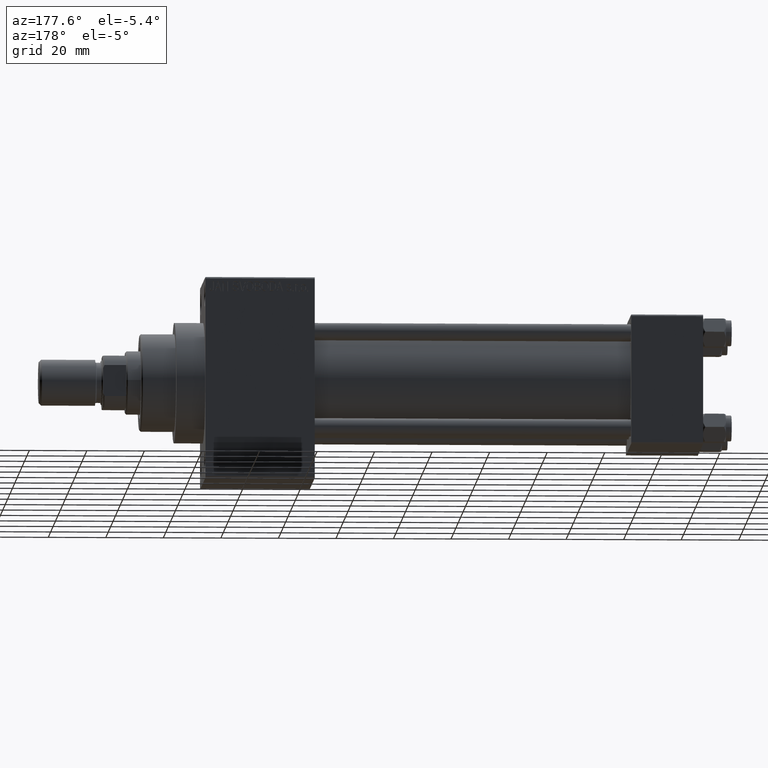
[diagram: clean part render]
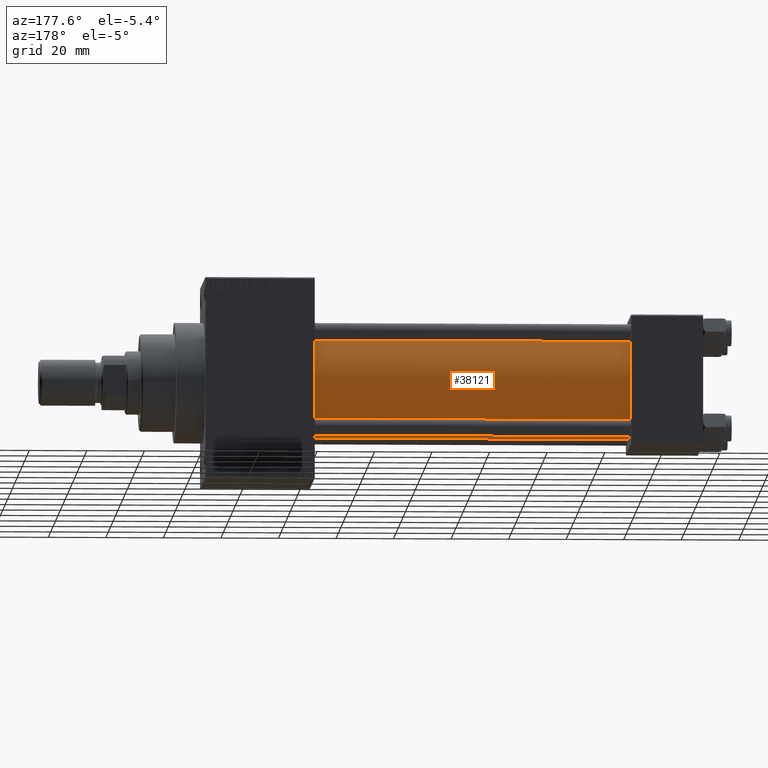
[diagram: same view with one face highlighted and labeled with its STEP entity id]
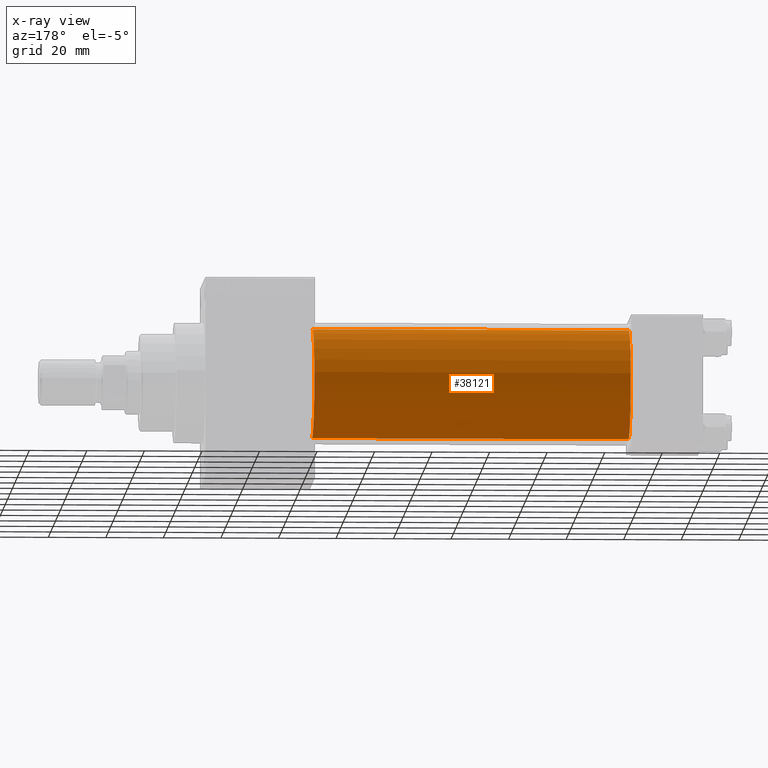
[diagram: x-ray of the same camera — body ghosted, the highlighted face saturated]
A machine part, auxiliary view. The second image highlights one B-rep face of the part: STEP entity #38121.
The next image is the same camera in x-ray: the body ghosted, the highlighted face saturated — about 0% of this face is hidden behind the body in this view.
In plain terms, the highlighted cylindrical surface (partial cylindrical patch) has radius 19 mm, axis along (-1, -0, -0).
Its self-contained STEP definition (entity closure, byte-faithful):
#3793 = CARTESIAN_POINT ( 'NONE',  ( 135.0000000000000000, -2.752562955852396712E-16, -19.00000000000000000 ) ) ;
#4230 = CIRCLE ( 'NONE', #9636, 19.00000000000000000 ) ;
#4643 = ORIENTED_EDGE ( 'NONE', *, *, #18242, .T. ) ;
#7622 = CIRCLE ( 'NONE', #34501, 19.00000000000000000 ) ;
#7911 = EDGE_CURVE ( 'NONE', #32241, #9795, #7622, .T. ) ;
#9193 = CARTESIAN_POINT ( 'NONE',  ( 135.0000000000000000, -2.602085213965210642E-15, 19.00000000000000000 ) ) ;
#9636 = AXIS2_PLACEMENT_3D ( 'NONE', #16887, #31548, #27936 ) ;
#9795 = VERTEX_POINT ( 'NONE', #9193 ) ;
#10458 = AXIS2_PLACEMENT_3D ( 'NONE', #14865, #36493, #44197 ) ;
#11735 = CARTESIAN_POINT ( 'NONE',  ( 135.0000000000000000, -2.602085213965210642E-15, 0.000000000000000000 ) ) ;
#12824 = EDGE_LOOP ( 'NONE', ( #28308, #32045, #4643, #15861 ) ) ;
#13184 = VECTOR ( 'NONE', #41785, 1000.000000000000000 ) ;
#14865 = CARTESIAN_POINT ( 'NONE',  ( 135.0000000000000000, -2.602085213965210642E-15, 0.000000000000000000 ) ) ;
#15861 = ORIENTED_EDGE ( 'NONE', *, *, #25751, .F. ) ;
#16887 = CARTESIAN_POINT ( 'NONE',  ( 24.99999999999999289, -2.602085213965210642E-15, 0.000000000000000000 ) ) ;
#17365 = CARTESIAN_POINT ( 'NONE',  ( 24.99999999999999289, -2.602085213965210642E-15, 19.00000000000000000 ) ) ;
#17576 = VECTOR ( 'NONE', #21355, 1000.000000000000000 ) ;
#18203 = LINE ( 'NONE', #32871, #17576 ) ;
#18242 = EDGE_CURVE ( 'NONE', #33890, #27041, #4230, .T. ) ;
#19184 = DIRECTION ( 'NONE',  ( 0.000000000000000000, 0.000000000000000000, -1.000000000000000000 ) ) ;
#21355 = DIRECTION ( 'NONE',  ( -1.000000000000000000, -0.000000000000000000, -0.000000000000000000 ) ) ;
#25751 = EDGE_CURVE ( 'NONE', #9795, #27041, #18203, .T. ) ;
#26892 = LINE ( 'NONE', #30730, #13184 ) ;
#27041 = VERTEX_POINT ( 'NONE', #17365 ) ;
#27936 = DIRECTION ( 'NONE',  ( 0.000000000000000000, 0.000000000000000000, 1.000000000000000000 ) ) ;
#28308 = ORIENTED_EDGE ( 'NONE', *, *, #7911, .F. ) ;
#30730 = CARTESIAN_POINT ( 'NONE',  ( 135.0000000000000000, -2.752562955852396712E-16, -19.00000000000000000 ) ) ;
#31548 = DIRECTION ( 'NONE',  ( 1.000000000000000000, -0.000000000000000000, 0.000000000000000000 ) ) ;
#31836 = CARTESIAN_POINT ( 'NONE',  ( 24.99999999999999289, -2.752562955852396712E-16, -19.00000000000000000 ) ) ;
#32045 = ORIENTED_EDGE ( 'NONE', *, *, #35619, .T. ) ;
#32241 = VERTEX_POINT ( 'NONE', #3793 ) ;
#32871 = CARTESIAN_POINT ( 'NONE',  ( 135.0000000000000000, -2.602085213965210642E-15, 19.00000000000000000 ) ) ;
#32893 = CYLINDRICAL_SURFACE ( 'NONE', #10458, 19.00000000000000000 ) ;
#33134 = FACE_OUTER_BOUND ( 'NONE', #12824, .T. ) ;
#33890 = VERTEX_POINT ( 'NONE', #31836 ) ;
#34501 = AXIS2_PLACEMENT_3D ( 'NONE', #11735, #40588, #19184 ) ;
#35619 = EDGE_CURVE ( 'NONE', #32241, #33890, #26892, .T. ) ;
#36493 = DIRECTION ( 'NONE',  ( -1.000000000000000000, -0.000000000000000000, -0.000000000000000000 ) ) ;
#38121 = ADVANCED_FACE ( 'NONE', ( #33134 ), #32893, .T. ) ;
#40588 = DIRECTION ( 'NONE',  ( 1.000000000000000000, 0.000000000000000000, 0.000000000000000000 ) ) ;
#41785 = DIRECTION ( 'NONE',  ( -1.000000000000000000, -0.000000000000000000, -0.000000000000000000 ) ) ;
#44197 = DIRECTION ( 'NONE',  ( 0.000000000000000000, 0.000000000000000000, 1.000000000000000000 ) ) ;